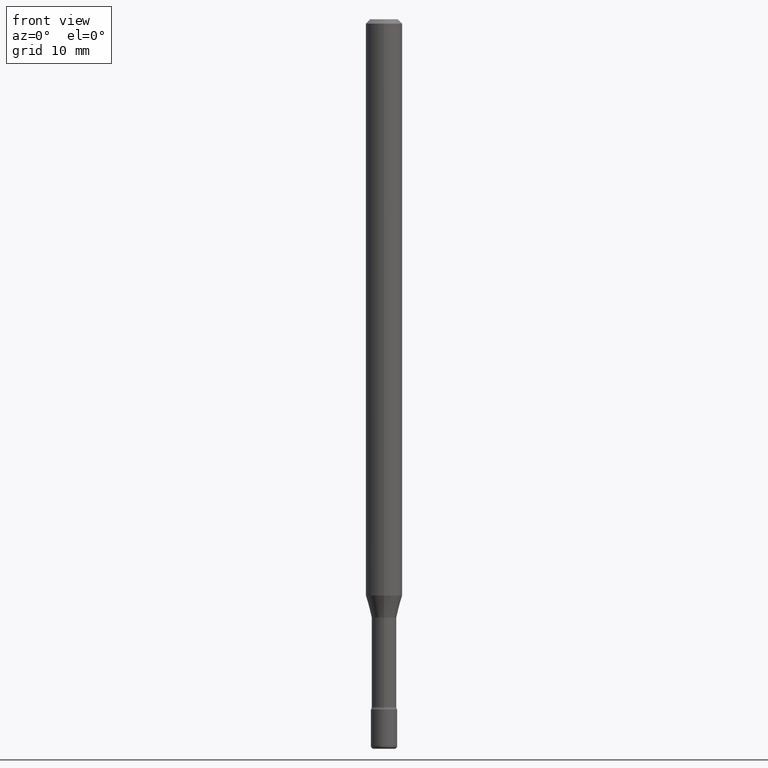
[diagram: clean part render]
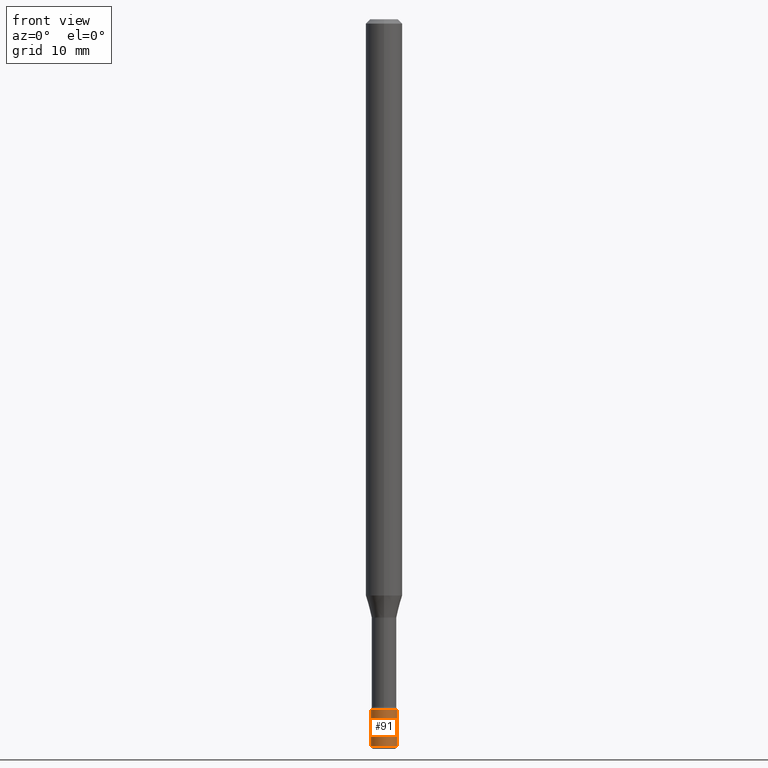
[diagram: same view with one face highlighted and labeled with its STEP entity id]
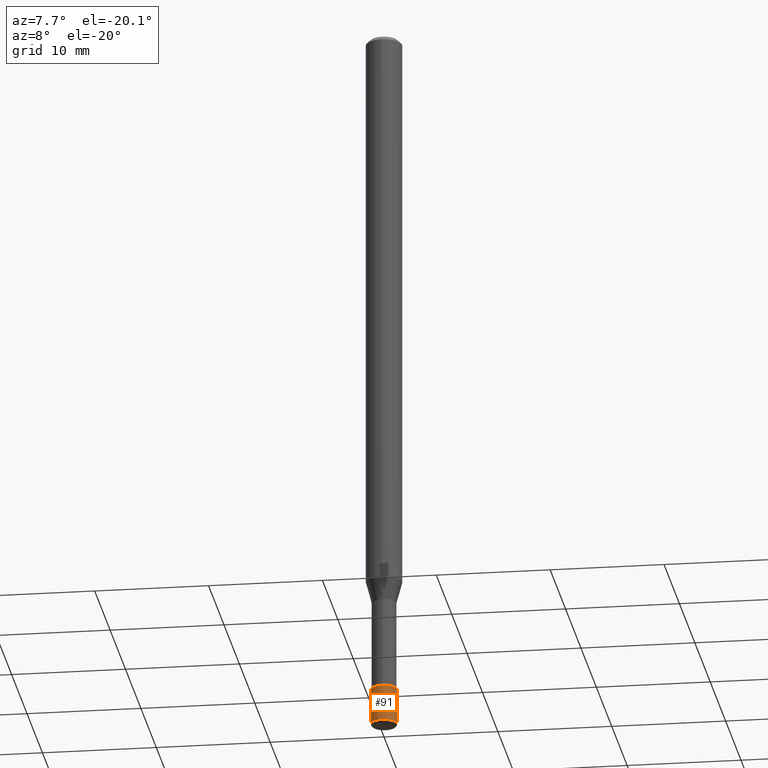
[diagram: same view with one face highlighted and labeled with its STEP entity id]
A machine part, front view. The second image highlights one B-rep face of the part: STEP entity #91.
A second angle (auxiliary view) of the same face is appended — the face is thin or edge-on in the first view.
In plain terms, the highlighted cylindrical surface (edge-blend (fillet) strip) has radius 1.143 mm, axis along (-0, 0, 1).
Its self-contained STEP definition (entity closure, byte-faithful):
#37 = DIRECTION ( 'NONE',  ( 1.000000000000000000, -6.982962677686269077E-15, 0.000000000000000000 ) ) ;
#68 = DIRECTION ( 'NONE',  ( -2.445468806185136877E-29, 3.491481338843145188E-15, 1.000000000000000000 ) ) ;
#89 = CIRCLE ( 'NONE', #251, 0.04499999999999999833 ) ;
#91 = ADVANCED_FACE ( 'NONE', ( #335 ), #382, .T. ) ;
#112 = DIRECTION ( 'NONE',  ( 1.000000000000000000, -6.982962677686245411E-15, 0.000000000000000000 ) ) ;
#113 = VERTEX_POINT ( 'NONE', #166 ) ;
#144 = CARTESIAN_POINT ( 'NONE',  ( 6.089217327400989947E-29, -8.693788533719431716E-15, -2.489999999999999769 ) ) ;
#148 = ORIENTED_EDGE ( 'NONE', *, *, #542, .T. ) ;
#166 = CARTESIAN_POINT ( 'NONE',  ( -0.04500000000000004691, -8.374044302627387137E-15, -2.489999999999999769 ) ) ;
#176 = DIRECTION ( 'NONE',  ( -2.445468806185136597E-29, 3.491481338843145583E-15, 1.000000000000000000 ) ) ;
#194 = CIRCLE ( 'NONE', #553, 0.04500000000000000527 ) ;
#219 = VECTOR ( 'NONE', #68, 39.37007874015748143 ) ;
#237 = CARTESIAN_POINT ( 'NONE',  ( 0.000000000000000000, 0.000000000000000000, 0.000000000000000000 ) ) ;
#241 = DIRECTION ( 'NONE',  ( -2.445468806185136597E-29, 3.491481338843145583E-15, 1.000000000000000000 ) ) ;
#244 = LINE ( 'NONE', #342, #550 ) ;
#251 = AXIS2_PLACEMENT_3D ( 'NONE', #509, #176, #37 ) ;
#284 = CARTESIAN_POINT ( 'NONE',  ( 0.04500000000000004691, -9.008021854215313402E-15, -2.489999999999999769 ) ) ;
#303 = EDGE_CURVE ( 'NONE', #113, #352, #194, .T. ) ;
#326 = DIRECTION ( 'NONE',  ( 1.000000000000000000, -6.982962677686266711E-15, 4.876176775795935793E-29 ) ) ;
#328 = CARTESIAN_POINT ( 'NONE',  ( 0.04499999999999999833, -3.142333204958819823E-16, 2.194279549108170967E-30 ) ) ;
#335 = FACE_OUTER_BOUND ( 'NONE', #466, .T. ) ;
#342 = CARTESIAN_POINT ( 'NONE',  ( -0.04499999999999999833, 3.197442310920450718E-16, -2.213520790614707560E-30 ) ) ;
#344 = DIRECTION ( 'NONE',  ( -2.445468806185136877E-29, 3.491481338843145188E-15, 1.000000000000000000 ) ) ;
#352 = VERTEX_POINT ( 'NONE', #284 ) ;
#364 = VERTEX_POINT ( 'NONE', #489 ) ;
#379 = AXIS2_PLACEMENT_3D ( 'NONE', #237, #241, #326 ) ;
#382 = CYLINDRICAL_SURFACE ( 'NONE', #379, 0.04499999999999999833 ) ;
#416 = CARTESIAN_POINT ( 'NONE',  ( 0.04499999999999999833, -8.571586686859921733E-15, -2.365000000000000213 ) ) ;
#431 = VERTEX_POINT ( 'NONE', #416 ) ;
#459 = DIRECTION ( 'NONE',  ( -2.445468806185136597E-29, 3.491481338843145583E-15, 1.000000000000000000 ) ) ;
#464 = ORIENTED_EDGE ( 'NONE', *, *, #483, .F. ) ;
#466 = EDGE_LOOP ( 'NONE', ( #482, #484, #148, #464 ) ) ;
#478 = EDGE_CURVE ( 'NONE', #113, #364, #244, .T. ) ;
#482 = ORIENTED_EDGE ( 'NONE', *, *, #478, .F. ) ;
#483 = EDGE_CURVE ( 'NONE', #364, #431, #89, .T. ) ;
#484 = ORIENTED_EDGE ( 'NONE', *, *, #303, .T. ) ;
#489 = CARTESIAN_POINT ( 'NONE',  ( -0.04499999999999999833, -8.155826718949690513E-15, -2.365000000000000213 ) ) ;
#509 = CARTESIAN_POINT ( 'NONE',  ( 5.783533726627847872E-29, -8.257353366364040046E-15, -2.365000000000000213 ) ) ;
#542 = EDGE_CURVE ( 'NONE', #352, #431, #545, .T. ) ;
#545 = LINE ( 'NONE', #328, #219 ) ;
#550 = VECTOR ( 'NONE', #344, 39.37007874015748143 ) ;
#553 = AXIS2_PLACEMENT_3D ( 'NONE', #144, #459, #112 ) ;